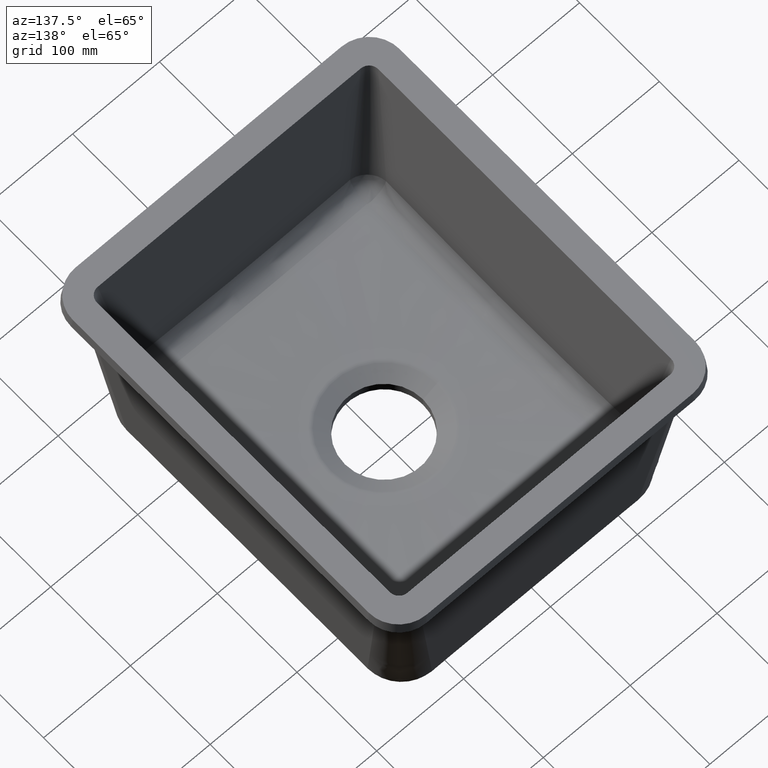
[diagram: clean part render]
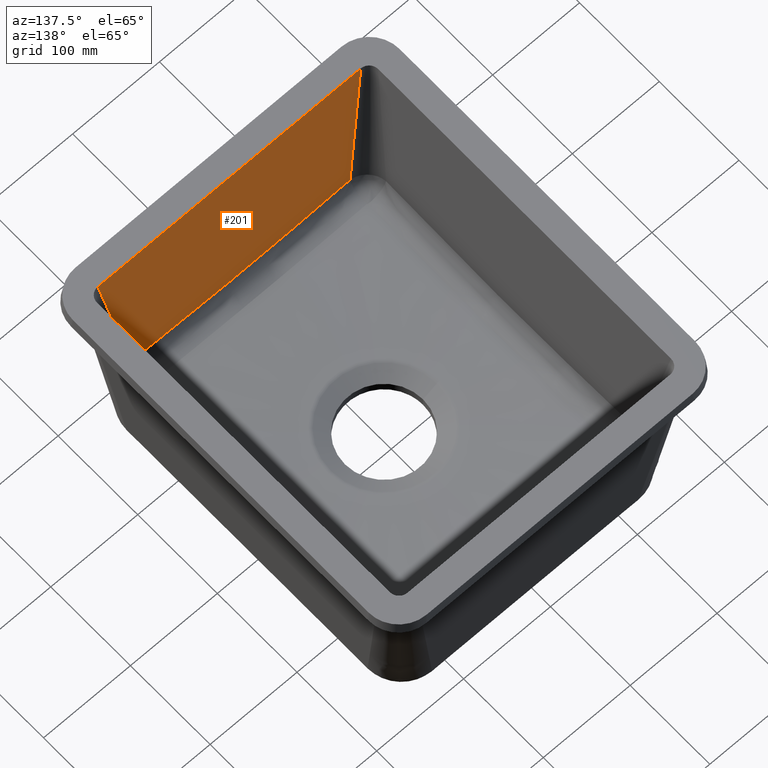
[diagram: same view with one face highlighted and labeled with its STEP entity id]
A machine part, auxiliary view. The second image highlights one B-rep face of the part: STEP entity #201.
In plain terms, the highlighted planar face has unit normal (0, -0.9962, -0.0872).
Its self-contained STEP definition (entity closure, byte-faithful):
#54=PLANE('',#1367);
#68=LINE('',#2955,#92);
#92=VECTOR('',#1469,1.);
#201=ADVANCED_FACE('',(#327),#54,.F.);
#327=FACE_OUTER_BOUND('',#415,.T.);
#415=EDGE_LOOP('',(#636,#637,#638,#639));
#636=ORIENTED_EDGE('',*,*,#1110,.F.);
#637=ORIENTED_EDGE('',*,*,#1109,.T.);
#638=ORIENTED_EDGE('',*,*,#1094,.T.);
#639=ORIENTED_EDGE('',*,*,#1096,.T.);
#949=VERTEX_POINT('',#2197);
#955=VERTEX_POINT('',#2650);
#956=VERTEX_POINT('',#2763);
#963=VERTEX_POINT('',#2922);
#1094=EDGE_CURVE('',#955,#949,#1261,.T.);
#1096=EDGE_CURVE('',#949,#956,#1263,.T.);
#1109=EDGE_CURVE('',#963,#955,#1273,.T.);
#1110=EDGE_CURVE('',#963,#956,#68,.T.);
#1261=B_SPLINE_CURVE_WITH_KNOTS('',3,(#2691,#2692,#2693,#2694,#2695,#2696,
#2697,#2698,#2699,#2700,#2701,#2702,#2703,#2704,#2705,#2706,#2707,#2708,
#2709,#2710,#2711,#2712,#2713,#2714,#2715,#2716,#2717,#2718,#2719,#2720,
#2721,#2722,#2723,#2724,#2725,#2726,#2727,#2728,#2729,#2730,#2731,#2732,
#2733,#2734,#2735,#2736,#2737,#2738),.UNSPECIFIED.,.F.,.F.,(4,1,1,1,2,2,
1,1,1,2,2,1,1,1,2,2,2,1,1,1,2,2,1,1,1,2,2,1,1,1,2,2,4),(0.,0.0624999999999992,
0.0937499999999987,0.109374999999998,0.117187499999998,0.124999999999998,
0.187499999999998,0.218749999999998,0.234374999999998,0.242187499999998,
0.249999999999998,0.312499999999999,0.343749999999999,0.359374999999999,
0.367187499999999,0.374999999999999,0.5,0.562500000000001,0.593750000000001,
0.609375000000001,0.617187500000001,0.625000000000001,0.687500000000001,
0.718750000000001,0.734375000000001,0.742187500000001,0.750000000000001,
0.812500000000001,0.843750000000001,0.859375000000001,0.867187500000001,
0.875000000000001,1.),.UNSPECIFIED.);
#1263=B_SPLINE_CURVE_WITH_KNOTS('',3,(#2765,#2766,#2767,#2768,#2769,#2770,
#2771,#2772),.UNSPECIFIED.,.F.,.F.,(4,2,2,4),(0.,0.530612244897959,0.795918367346939,
1.),.UNSPECIFIED.);
#1273=B_SPLINE_CURVE_WITH_KNOTS('',3,(#2923,#2924,#2925,#2926,#2927,#2928,
#2929,#2930),.UNSPECIFIED.,.F.,.F.,(4,2,2,4),(0.,0.204081632653061,0.469387755102041,
1.),.UNSPECIFIED.);
#1367=AXIS2_PLACEMENT_3D('',#2956,#1470,#1471);
#1469=DIRECTION('',(-1.,0.,0.));
#1470=DIRECTION('',(0.,-0.996194698091746,-0.0871557427476581));
#1471=DIRECTION('',(0.,-0.087155742747658,0.996194698091746));
#2197=CARTESIAN_POINT('',(-125.795188108623,-388.955657532046,-163.957621269363));
#2650=CARTESIAN_POINT('',(125.795187940147,-388.955657531404,-163.957621276707));
#2691=CARTESIAN_POINT('',(125.795187940142,-388.955657531412,-163.95762127661));
#2692=CARTESIAN_POINT('',(120.333352303716,-388.934828087361,-164.195702911553));
#2693=CARTESIAN_POINT('',(112.305850413381,-388.90551554072,-164.530746852795));
#2694=CARTESIAN_POINT('',(103.229621778854,-388.874697903649,-164.882994056359));
#2695=CARTESIAN_POINT('',(98.7638050209728,-388.860134168616,-165.049458309503));
#2696=CARTESIAN_POINT('',(96.8653758874629,-388.85407365721,-165.118730271857));
#2697=CARTESIAN_POINT('',(95.603199206046,-388.850073558344,-165.16445161111));
#2698=CARTESIAN_POINT('',(95.0235243524563,-388.848248792313,-165.185308782291));
#2699=CARTESIAN_POINT('',(88.9274849044712,-388.82921406477,-165.402876713675));
#2700=CARTESIAN_POINT('',(80.9315379331821,-388.805892017344,-165.669448935567));
#2701=CARTESIAN_POINT('',(71.8341179788877,-388.782283743283,-165.939292742859));
#2702=CARTESIAN_POINT('',(67.3432042131261,-388.77137980157,-166.063925366943));
#2703=CARTESIAN_POINT('',(65.4309117873824,-388.76689958269,-166.115134503072));
#2704=CARTESIAN_POINT('',(64.1588023707621,-388.763955636547,-166.148783961466));
#2705=CARTESIAN_POINT('',(63.5645440508227,-388.762596308876,-166.16432114784));
#2706=CARTESIAN_POINT('',(57.5010388880132,-388.748913439615,-166.320717059145));
#2707=CARTESIAN_POINT('',(49.5265782894504,-388.732907462596,-166.503666213622));
#2708=CARTESIAN_POINT('',(40.4159135901978,-388.718150057902,-166.672344121136));
#2709=CARTESIAN_POINT('',(35.9087994070059,-388.711750414344,-166.745492381716));
#2710=CARTESIAN_POINT('',(33.9875115070167,-388.709217508275,-166.774443630569));
#2711=CARTESIAN_POINT('',(32.7089490101874,-388.707575526076,-166.793211572987));
#2712=CARTESIAN_POINT('',(32.1049006288235,-388.706819282082,-166.801855481381));
#2713=CARTESIAN_POINT('',(20.6967112965835,-388.692950589678,-166.960375360928));
#2714=CARTESIAN_POINT('',(10.2113721067229,-388.686428006369,-167.034928829299));
#2715=CARTESIAN_POINT('',(-5.13575543346748,-388.686439584473,-167.034796490973));
#2716=CARTESIAN_POINT('',(-12.9036269369937,-388.688892411839,-167.006760545884));
#2717=CARTESIAN_POINT('',(-22.1311822246118,-388.696036360818,-166.925104835409));
#2718=CARTESIAN_POINT('',(-26.7862195017969,-388.70067891457,-166.872040203204));
#2719=CARTESIAN_POINT('',(-28.7900768277426,-388.702897990306,-166.84667605148));
#2720=CARTESIAN_POINT('',(-30.1279464561528,-388.704428354095,-166.829183913332));
#2721=CARTESIAN_POINT('',(-30.8320292736963,-388.705260589101,-166.819671423685));
#2722=CARTESIAN_POINT('',(-36.5626346215244,-388.712231977672,-166.739988087696));
#2723=CARTESIAN_POINT('',(-44.3136693870589,-388.723764129818,-166.608174985495));
#2724=CARTESIAN_POINT('',(-53.5494416416023,-388.741133000247,-166.409647888051));
#2725=CARTESIAN_POINT('',(-58.2155523592288,-388.750796108693,-166.299198053109));
#2726=CARTESIAN_POINT('',(-60.2256479361449,-388.755147156577,-166.24946534823));
#2727=CARTESIAN_POINT('',(-61.5680080631534,-388.758094458653,-166.215777531348));
#2728=CARTESIAN_POINT('',(-62.2808691306626,-388.759682907091,-166.197621482623));
#2729=CARTESIAN_POINT('',(-67.9773621885283,-388.772541736912,-166.050644385214));
#2730=CARTESIAN_POINT('',(-75.7052682009994,-388.791744785056,-165.831152540556));
#2731=CARTESIAN_POINT('',(-84.9531769356871,-388.817749739226,-165.533914554255));
#2732=CARTESIAN_POINT('',(-89.635135899732,-388.831652565812,-165.375004519222));
#2733=CARTESIAN_POINT('',(-91.6541192979015,-388.837803852099,-165.304694995233));
#2734=CARTESIAN_POINT('',(-93.002870353667,-388.84194758341,-165.257331929626));
#2735=CARTESIAN_POINT('',(-93.7284779914708,-388.844196573619,-165.231625853901));
#2736=CARTESIAN_POINT('',(-104.392350249955,-388.877500453867,-164.850960760782));
#2737=CARTESIAN_POINT('',(-114.872158087858,-388.91400108942,-164.433756587337));
#2738=CARTESIAN_POINT('',(-125.795188108619,-388.955657532055,-163.957621269266));
#2763=CARTESIAN_POINT('',(-151.238486504772,-403.300090691793,-9.85322934354826E-13));
#2765=CARTESIAN_POINT('',(-63.548853227597,-353.862393434092,-565.075465383595));
#2766=CARTESIAN_POINT('',(-83.3409202252018,-365.020773048235,-437.534602779874));
#2767=CARTESIAN_POINT('',(-103.132987222807,-376.179152662378,-309.993740176153));
#2768=CARTESIAN_POINT('',(-132.821087719214,-392.916722083593,-118.682446270571));
#2769=CARTESIAN_POINT('',(-142.717121218016,-398.495911890665,-54.9120149687108));
#2770=CARTESIAN_POINT('',(-160.225488177436,-408.366786164714,57.9125942576577));
#2771=CARTESIAN_POINT('',(-167.837821638053,-412.658470631692,106.966772182166));
#2772=CARTESIAN_POINT('',(-175.45015509867,-416.95015509867,156.020950106674));
#2922=CARTESIAN_POINT('',(151.238486496195,-403.300090691793,3.10342029852251E-12));
#2923=CARTESIAN_POINT('',(175.450154914504,-416.950154914504,156.020948001641));
#2924=CARTESIAN_POINT('',(167.837821515276,-412.658470508915,106.96677077881));
#2925=CARTESIAN_POINT('',(160.225488116047,-408.366786103325,57.91259355598));
#2926=CARTESIAN_POINT('',(142.717121297822,-398.49591197047,-54.9120140565297));
#2927=CARTESIAN_POINT('',(132.821087878825,-392.916722243204,-118.682444446209));
#2928=CARTESIAN_POINT('',(103.132987621834,-376.179153061406,-309.993735615247));
#2929=CARTESIAN_POINT('',(83.3409207838403,-365.020773606874,-437.534596394606));
#2930=CARTESIAN_POINT('',(63.5488539458465,-353.862394152342,-565.075457173965));
#2955=CARTESIAN_POINT('',(162.5,-403.300090691793,0.));
#2956=CARTESIAN_POINT('',(162.5,-404.,8.));